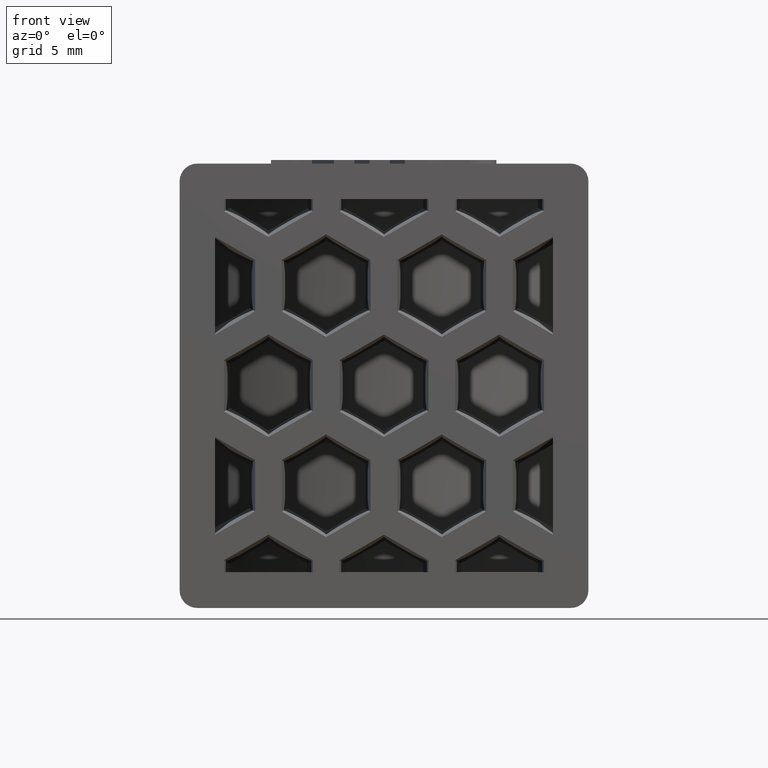
[diagram: clean part render]
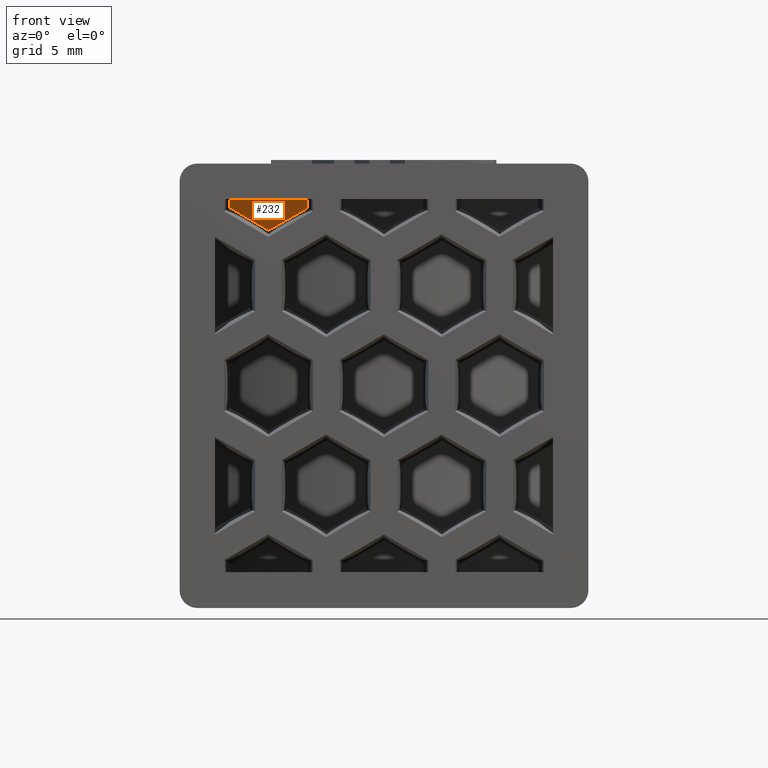
[diagram: same view with one face highlighted and labeled with its STEP entity id]
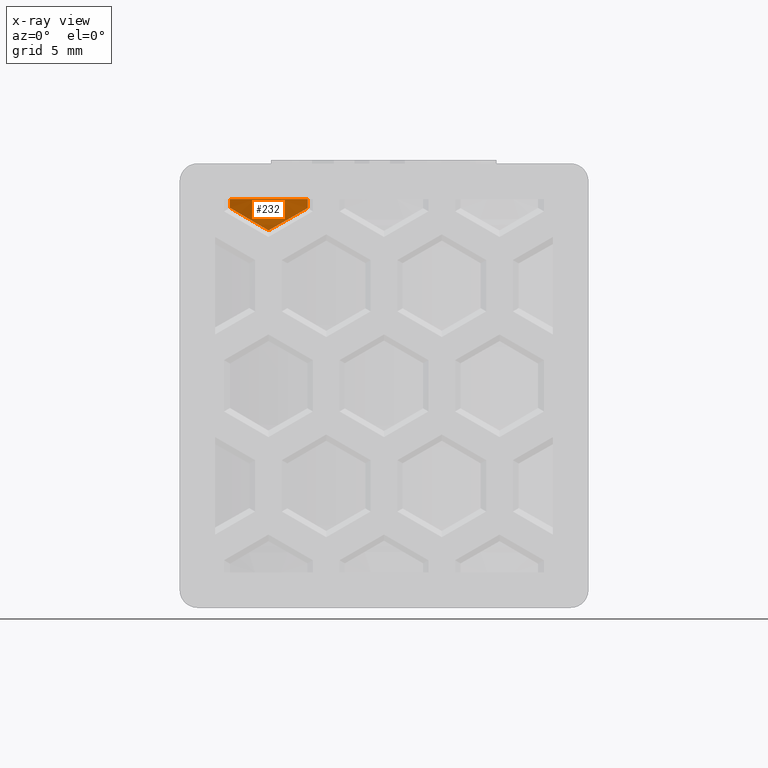
[diagram: x-ray of the same camera — body ghosted, the highlighted face saturated]
A machine part, front view. The second image highlights one B-rep face of the part: STEP entity #232.
The next image is the same camera in x-ray: the body ghosted, the highlighted face saturated — about 0% of this face is hidden behind the body in this view.
In plain terms, the highlighted cylindrical surface (partial cylindrical patch) has radius 17.54 mm, axis along (0, 0, -1).
Its self-contained STEP definition (entity closure, byte-faithful):
#232 = ADVANCED_FACE( '', ( #580 ), #581, .T. );
#580 = FACE_OUTER_BOUND( '', #1466, .T. );
#581 = CYLINDRICAL_SURFACE( '', #1467, 17.5400000000000 );
#1466 = EDGE_LOOP( '', ( #2706, #2707, #2708, #2709, #2710 ) );
#1467 = AXIS2_PLACEMENT_3D( '', #2711, #2712, #2713 );
#2706 = ORIENTED_EDGE( '', *, *, #3035, .F. );
#2707 = ORIENTED_EDGE( '', *, *, #3138, .T. );
#2708 = ORIENTED_EDGE( '', *, *, #3033, .F. );
#2709 = ORIENTED_EDGE( '', *, *, #3031, .F. );
#2710 = ORIENTED_EDGE( '', *, *, #3028, .F. );
#2711 = CARTESIAN_POINT( '', ( 0.000000000000000, 34.5400000000000, -10.5000000000000 ) );
#2712 = DIRECTION( '', ( 0.000000000000000, 0.000000000000000, -1.00000000000000 ) );
#2713 = DIRECTION( '', ( -1.00000000000000, 6.07153216591882E-017, 0.000000000000000 ) );
#3028 = EDGE_CURVE( '', #3624, #3625, #3626, .T. );
#3031 = EDGE_CURVE( '', #3625, #3629, #3630, .T. );
#3033 = EDGE_CURVE( '', #3629, #3632, #3633, .T. );
#3035 = EDGE_CURVE( '', #3635, #3624, #3636, .F. );
#3138 = EDGE_CURVE( '', #3635, #3632, #3785, .T. );
#3624 = VERTEX_POINT( '', #4485 );
#3625 = VERTEX_POINT( '', #4486 );
#3626 = ELLIPSE( '', #4487, 20.2565326112035, 17.5400000000000 );
#3629 = VERTEX_POINT( '', #4492 );
#3630 = ELLIPSE( '', #4493, 20.2565326112035, 17.5400000000000 );
#3632 = VERTEX_POINT( '', #4496 );
#3633 = LINE( '', #4497, #4498 );
#3635 = VERTEX_POINT( '', #4501 );
#3636 = LINE( '', #4502, #4503 );
#3785 = CIRCLE( '', #4726, 17.5400000000000 );
#4485 = CARTESIAN_POINT( '', ( -4.30610585836804, 17.5367928808554, 9.99135462675524 ) );
#4486 = CARTESIAN_POINT( '', ( -6.50000000000000, 18.2488490277697, 8.73906101065596 ) );
#4487 = AXIS2_PLACEMENT_3D( '', #5184, #5185, #5186 );
#4492 = CARTESIAN_POINT( '', ( -8.66331246645276, 19.2888158784767, 10.0090109651522 ) );
#4493 = AXIS2_PLACEMENT_3D( '', #5189, #5190, #5191 );
#4496 = CARTESIAN_POINT( '', ( -8.66331246645276, 19.2888158784767, 10.5000000000000 ) );
#4497 = CARTESIAN_POINT( '', ( -8.66331246645276, 19.2888158784767, -10.5000000000000 ) );
#4498 = VECTOR( '', #5193, 1000.00000000000 );
#4501 = CARTESIAN_POINT( '', ( -4.30610585836804, 17.5367928808554, 10.5000000000000 ) );
#4502 = CARTESIAN_POINT( '', ( -4.30610585836805, 17.5367928808554, -10.5000000000000 ) );
#4503 = VECTOR( '', #5195, 1000.00000000000 );
#4726 = AXIS2_PLACEMENT_3D( '', #5354, #5355, #5356 );
#5184 = CARTESIAN_POINT( '', ( 0.000000000000000, 34.5400000000000, 12.8201919827162 ) );
#5185 = DIRECTION( '', ( 0.499923847578195, 0.0174524064372835, -0.865893503920754 ) );
#5186 = DIRECTION( '', ( 0.865366346075250, 0.0302100515148758, 0.500228387706894 ) );
#5189 = CARTESIAN_POINT( '', ( 0.000000000000000, 34.5400000000000, 5.31463848325109 ) );
#5190 = DIRECTION( '', ( -0.499923847578196, 0.0174524064372835, -0.865893503920754 ) );
#5191 = DIRECTION( '', ( -0.865366346075250, 0.0302100515148758, 0.500228387706895 ) );
#5193 = DIRECTION( '', ( 0.000000000000000, 0.000000000000000, 1.00000000000000 ) );
#5195 = DIRECTION( '', ( 0.000000000000000, 0.000000000000000, 1.00000000000000 ) );
#5354 = CARTESIAN_POINT( '', ( 0.000000000000000, 34.5400000000000, 10.5000000000000 ) );
#5355 = DIRECTION( '', ( 0.000000000000000, 0.000000000000000, -1.00000000000000 ) );
#5356 = DIRECTION( '', ( 1.00000000000000, 3.81856746906867E-017, 0.000000000000000 ) );